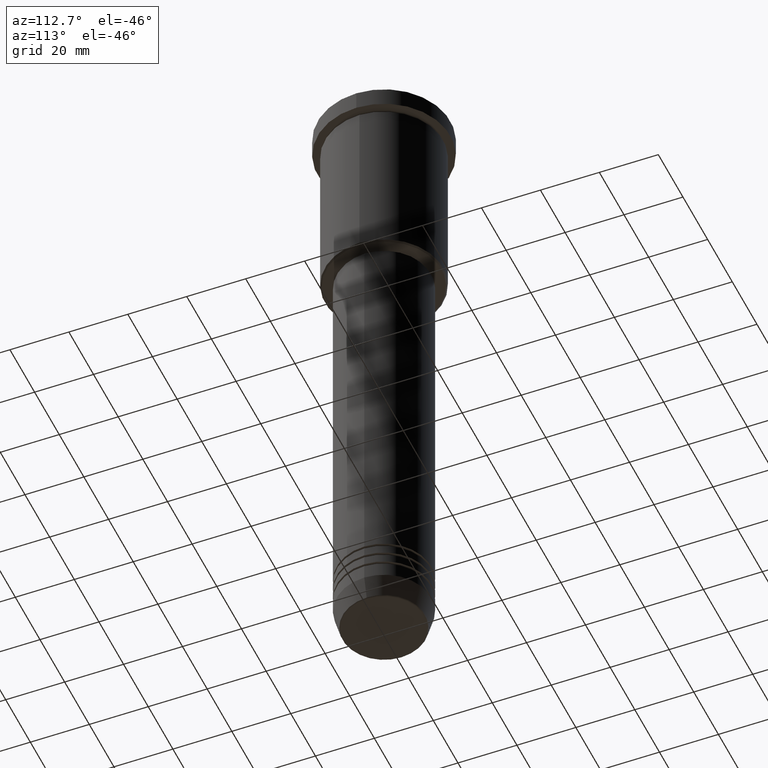
[diagram: clean part render]
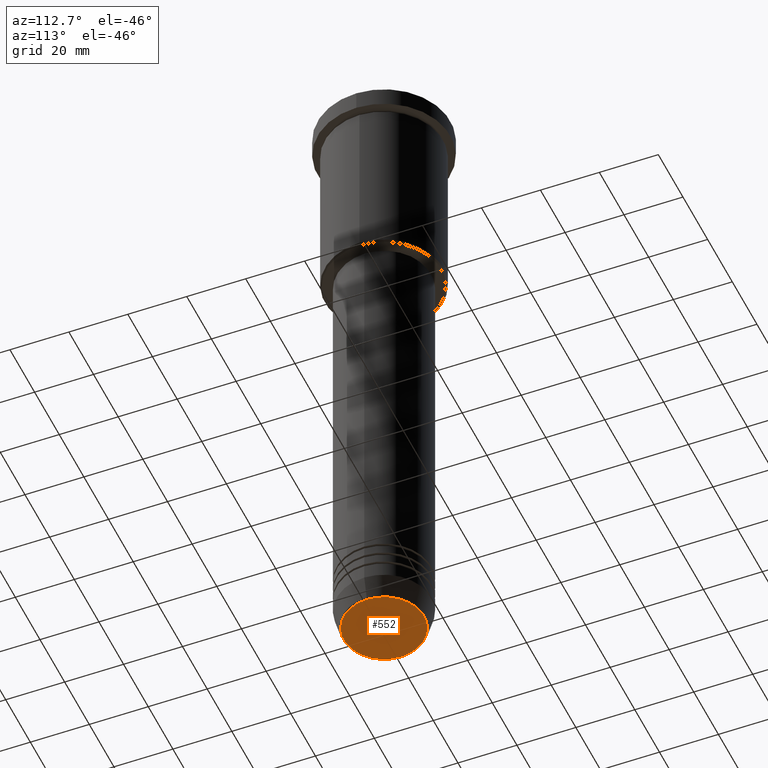
[diagram: same view with one face highlighted and labeled with its STEP entity id]
A machine part, auxiliary view. The second image highlights one B-rep face of the part: STEP entity #552.
In plain terms, the highlighted planar face has unit normal (0, -0, 1).
Its self-contained STEP definition (entity closure, byte-faithful):
#20 = CARTESIAN_POINT ( 'NONE',  ( 13.60671756277710109, 0.000000000000000000, -219.9999999999999716 ) ) ;
#31 = CIRCLE ( 'NONE', #259, 13.60671756277710109 ) ;
#35 = CARTESIAN_POINT ( 'NONE',  ( -13.60671756277710109, 1.695915260300172047E-15, -219.9999999999999716 ) ) ;
#134 = ORIENTED_EDGE ( 'NONE', *, *, #620, .T. ) ;
#155 = VERTEX_POINT ( 'NONE', #35 ) ;
#210 = PLANE ( 'NONE',  #560 ) ;
#250 = CARTESIAN_POINT ( 'NONE',  ( 0.000000000000000000, 0.000000000000000000, -219.9999999999999716 ) ) ;
#259 = AXIS2_PLACEMENT_3D ( 'NONE', #250, #1160, #541 ) ;
#313 = ORIENTED_EDGE ( 'NONE', *, *, #1178, .T. ) ;
#481 = CIRCLE ( 'NONE', #517, 13.60671756277710109 ) ;
#517 = AXIS2_PLACEMENT_3D ( 'NONE', #1132, #966, #1043 ) ;
#541 = DIRECTION ( 'NONE',  ( 1.000000000000000000, 0.000000000000000000, 0.000000000000000000 ) ) ;
#552 = ADVANCED_FACE ( 'NONE', ( #587 ), #210, .F. ) ;
#560 = AXIS2_PLACEMENT_3D ( 'NONE', #938, #761, #571 ) ;
#571 = DIRECTION ( 'NONE',  ( 1.000000000000000000, 0.000000000000000000, 0.000000000000000000 ) ) ;
#587 = FACE_OUTER_BOUND ( 'NONE', #771, .T. ) ;
#620 = EDGE_CURVE ( 'NONE', #155, #945, #481, .T. ) ;
#761 = DIRECTION ( 'NONE',  ( 0.000000000000000000, -0.000000000000000000, 1.000000000000000000 ) ) ;
#771 = EDGE_LOOP ( 'NONE', ( #313, #134 ) ) ;
#938 = CARTESIAN_POINT ( 'NONE',  ( 0.000000000000000000, 0.000000000000000000, -219.9999999999999716 ) ) ;
#945 = VERTEX_POINT ( 'NONE', #20 ) ;
#966 = DIRECTION ( 'NONE',  ( 0.000000000000000000, 0.000000000000000000, -1.000000000000000000 ) ) ;
#1043 = DIRECTION ( 'NONE',  ( 1.000000000000000000, 0.000000000000000000, 0.000000000000000000 ) ) ;
#1132 = CARTESIAN_POINT ( 'NONE',  ( 0.000000000000000000, 0.000000000000000000, -219.9999999999999716 ) ) ;
#1160 = DIRECTION ( 'NONE',  ( 0.000000000000000000, 0.000000000000000000, -1.000000000000000000 ) ) ;
#1178 = EDGE_CURVE ( 'NONE', #945, #155, #31, .T. ) ;